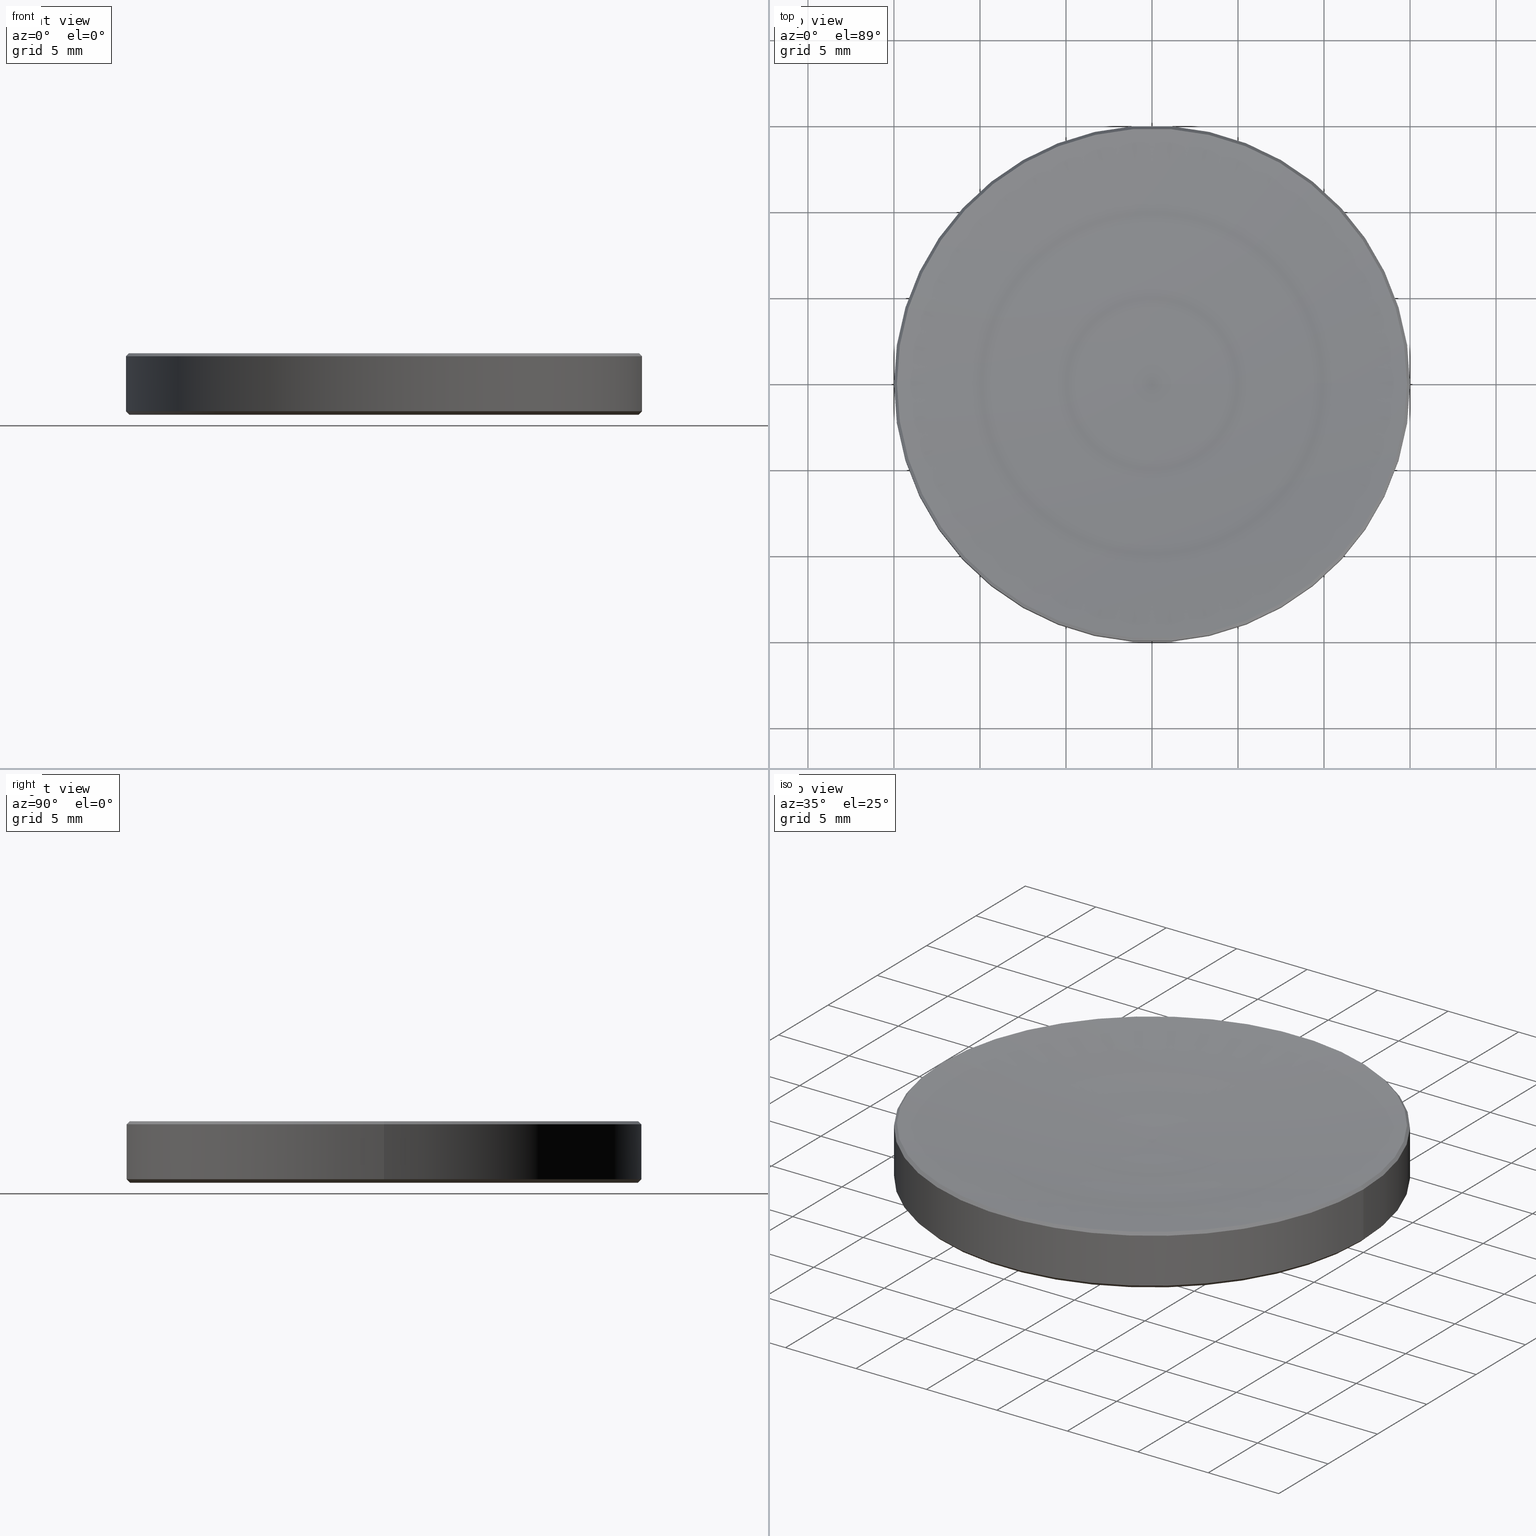
[diagram: canonical four-view strip — front | top / right | iso, engineering-drawing reading convention]
A machine part, canonical four-view strip (front | top / right | iso — engineering-drawing reading convention). The complete STEP part file that produces these views, byte-faithful:
ISO-10303-21;
HEADER;
FILE_DESCRIPTION (( 'STEP AP214' ),
    '1' );
FILE_NAME ('GL13-030-200.STEP',
    '2022-10-25T13:48:24',
    ( '' ),
    ( '' ),
    'SwSTEP 2.0',
    'SolidWorks 2022',
    '' );
FILE_SCHEMA (( 'AUTOMOTIVE_DESIGN' ));
ENDSEC;

DATA;
#1 = EDGE_LOOP ( 'NONE', ( #159, #261 ) ) ;
#2 = AXIS2_PLACEMENT_3D ( 'NONE', #102, #266, #223 ) ;
#3 = COLOUR_RGB ( '',1.000000000000000000, 1.000000000000000000, 1.000000000000000000 ) ;
#4 = ORIENTED_EDGE ( 'NONE', *, *, #248, .F. ) ;
#5 = ORIENTED_EDGE ( 'NONE', *, *, #38, .T. ) ;
#6 = VERTEX_POINT ( 'NONE', #118 ) ;
#7 = VECTOR ( 'NONE', #205, 1000.000000000000000 ) ;
#8 = DIRECTION ( 'NONE',  ( -0.000000000000000000, -0.000000000000000000, 1.000000000000000000 ) ) ;
#9 = CYLINDRICAL_SURFACE ( 'NONE', #42, 15.00000000000000000 ) ;
#10 = DIRECTION ( 'NONE',  ( -0.000000000000000000, -0.000000000000000000, 1.000000000000000000 ) ) ;
#11 = EDGE_CURVE ( 'NONE', #6, #137, #81, .T. ) ;
#12 = COLOUR_RGB ( '',1.000000000000000000, 1.000000000000000000, 1.000000000000000000 ) ;
#13 = LINE ( 'NONE', #170, #104 ) ;
#14 = DIRECTION ( 'NONE',  ( 0.000000000000000000, 0.000000000000000000, -1.000000000000000000 ) ) ;
#15 = CARTESIAN_POINT ( 'NONE',  ( 14.79999999999999893, 0.000000000000000000, 9.184850993605147944E-16 ) ) ;
#16 = AXIS2_PLACEMENT_3D ( 'NONE', #214, #234, #45 ) ;
#17 = FILL_AREA_STYLE_COLOUR ( '', #3 ) ;
#18 = MECHANICAL_DESIGN_GEOMETRIC_PRESENTATION_REPRESENTATION (  '', ( #154 ), #176 ) ;
#19 = EDGE_CURVE ( 'NONE', #21, #137, #95, .T. ) ;
#20 = CARTESIAN_POINT ( 'NONE',  ( 0.000000000000000000, 0.000000000000000000, 0.000000000000000000 ) ) ;
#21 = VERTEX_POINT ( 'NONE', #203 ) ;
#22 = ORIENTED_EDGE ( 'NONE', *, *, #232, .T. ) ;
#23 = FACE_OUTER_BOUND ( 'NONE', #180, .T. ) ;
#24 = FACE_OUTER_BOUND ( 'NONE', #1, .T. ) ;
#25 = CARTESIAN_POINT ( 'NONE',  ( -14.79999999999999893, 1.824723730729555837E-15, 9.184850993605147944E-16 ) ) ;
#26 = CARTESIAN_POINT ( 'NONE',  ( 0.000000000000000000, 0.000000000000000000, 0.1999999999999996503 ) ) ;
#27 = CARTESIAN_POINT ( 'NONE',  ( 0.000000000000000000, 0.000000000000000000, 2.500000000000000000 ) ) ;
#28 = CARTESIAN_POINT ( 'NONE',  ( 0.000000000000000000, 0.000000000000000000, 2.500000000000000000 ) ) ;
#29 = DIRECTION ( 'NONE',  ( 0.000000000000000000, 0.000000000000000000, -1.000000000000000000 ) ) ;
#30 = ADVANCED_FACE ( 'NONE', ( #24 ), #179, .F. ) ;
#31 = DIRECTION ( 'NONE',  ( 0.000000000000000000, 0.000000000000000000, -1.000000000000000000 ) ) ;
#32 = VECTOR ( 'NONE', #40, 1000.000000000000000 ) ;
#33 = AXIS2_PLACEMENT_3D ( 'NONE', #121, #210, #166 ) ;
#34 = CIRCLE ( 'NONE', #195, 103.2800000000000011 ) ;
#35 = DIRECTION ( 'NONE',  ( -0.000000000000000000, -0.000000000000000000, 1.000000000000000000 ) ) ;
#36 = CARTESIAN_POINT ( 'NONE',  ( -15.00000000000000000, 1.836970198721029589E-15, 3.399999999999972378 ) ) ;
#37 = PRESENTATION_LAYER_ASSIGNMENT (  '', '', ( #135 ) ) ;
#38 = EDGE_CURVE ( 'NONE', #113, #21, #175, .T. ) ;
#39 = EDGE_LOOP ( 'NONE', ( #79, #140, #161, #187 ) ) ;
#40 = DIRECTION ( 'NONE',  ( 0.7071067811864948371, 8.659560562354288211E-17, -0.7071067811866003083 ) ) ;
#41 = EDGE_LOOP ( 'NONE', ( #4, #5, #156, #142 ) ) ;
#42 = AXIS2_PLACEMENT_3D ( 'NONE', #28, #10, #257 ) ;
#43 = ORIENTED_EDGE ( 'NONE', *, *, #99, .F. ) ;
#44 = DIRECTION ( 'NONE',  ( 0.000000000000000000, 0.000000000000000000, -1.000000000000000000 ) ) ;
#45 = DIRECTION ( 'NONE',  ( -1.000000000000000000, 0.000000000000000000, 0.000000000000000000 ) ) ;
#46 = CIRCLE ( 'NONE', #2, 103.2800000000000011 ) ;
#47 = CIRCLE ( 'NONE', #126, 15.00000000000000000 ) ;
#48 = EDGE_CURVE ( 'NONE', #114, #224, #46, .T. ) ;
#49 = DIRECTION ( 'NONE',  ( 1.000000000000000000, 0.000000000000000000, 0.000000000000000000 ) ) ;
#50 = DIRECTION ( 'NONE',  ( -0.000000000000000000, -0.000000000000000000, 1.000000000000000000 ) ) ;
#51 = DIRECTION ( 'NONE',  ( -0.000000000000000000, -0.000000000000000000, 1.000000000000000000 ) ) ;
#52 = PRODUCT_DEFINITION_SHAPE ( 'NONE', 'NONE',  #86 ) ;
#53 = ADVANCED_FACE ( 'NONE', ( #23 ), #251, .F. ) ;
#54 =( NAMED_UNIT ( * ) PLANE_ANGLE_UNIT ( ) SI_UNIT ( $, .RADIAN. ) );
#55 = SURFACE_STYLE_FILL_AREA ( #76 ) ;
#56 = ORIENTED_EDGE ( 'NONE', *, *, #191, .T. ) ;
#57 = ORIENTED_EDGE ( 'NONE', *, *, #11, .T. ) ;
#58 = DIRECTION ( 'NONE',  ( -0.000000000000000000, -0.000000000000000000, 1.000000000000000000 ) ) ;
#59 = ORIENTED_EDGE ( 'NONE', *, *, #255, .F. ) ;
#60 = DIRECTION ( 'NONE',  ( 1.000000000000000000, 0.000000000000000000, 0.000000000000000000 ) ) ;
#61 = DIRECTION ( 'NONE',  ( 1.000000000000000000, 0.000000000000000000, 0.000000000000000000 ) ) ;
#62 = CARTESIAN_POINT ( 'NONE',  ( 0.000000000000000000, 0.000000000000000000, 9.184850993605147944E-16 ) ) ;
#63 = AXIS2_PLACEMENT_3D ( 'NONE', #235, #51, #125 ) ;
#64 = UNCERTAINTY_MEASURE_WITH_UNIT (LENGTH_MEASURE( 1.000000000000000082E-05 ), #127, 'distance_accuracy_value', 'NONE');
#65 = ORIENTED_EDGE ( 'NONE', *, *, #48, .F. ) ;
#66 = FACE_OUTER_BOUND ( 'NONE', #41, .T. ) ;
#67 = CARTESIAN_POINT ( 'NONE',  ( 0.000000000000000000, 0.000000000000000000, 3.574481109687874358 ) ) ;
#68 = CARTESIAN_POINT ( 'NONE',  ( -0.03353293412618457009, 0.000000000000000000, 105.7799945562659616 ) ) ;
#69 = DIRECTION ( 'NONE',  ( -1.000000000000000000, 0.000000000000000000, 0.000000000000000000 ) ) ;
#70 = CARTESIAN_POINT ( 'NONE',  ( 0.000000000000000000, 0.000000000000000000, 9.184850993605147944E-16 ) ) ;
#71 = PRODUCT_RELATED_PRODUCT_CATEGORY ( 'part', '', ( #89 ) ) ;
#72 = CONICAL_SURFACE ( 'NONE', #182, 14.82551889031212333, 0.7853981633973737830 ) ;
#73 =( LENGTH_UNIT ( ) NAMED_UNIT ( * ) SI_UNIT ( .MILLI., .METRE. ) );
#74 = EDGE_LOOP ( 'NONE', ( #178, #242, #206, #139 ) ) ;
#75 = CIRCLE ( 'NONE', #33, 15.00000000000000000 ) ;
#76 = FILL_AREA_STYLE ('',( #17 ) ) ;
#77 = SURFACE_STYLE_FILL_AREA ( #172 ) ;
#78 = ORIENTED_EDGE ( 'NONE', *, *, #197, .F. ) ;
#79 = ORIENTED_EDGE ( 'NONE', *, *, #217, .T. ) ;
#80 = ORIENTED_EDGE ( 'NONE', *, *, #99, .T. ) ;
#81 = LINE ( 'NONE', #163, #32 ) ;
#82 = AXIS2_PLACEMENT_3D ( 'NONE', #107, #143, #49 ) ;
#83 =( GEOMETRIC_REPRESENTATION_CONTEXT ( 3 ) GLOBAL_UNCERTAINTY_ASSIGNED_CONTEXT ( ( #169 ) ) GLOBAL_UNIT_ASSIGNED_CONTEXT ( ( #239, #131, #94 ) ) REPRESENTATION_CONTEXT ( 'NONE', 'WORKASPACE' ) );
#84 = CARTESIAN_POINT ( 'NONE',  ( -15.00000000000000000, 1.836970198721029589E-15, 0.1999999999999996503 ) ) ;
#85 = CARTESIAN_POINT ( 'NONE',  ( 0.000000000000000000, 0.000000000000000000, 2.500000000000000000 ) ) ;
#86 = PRODUCT_DEFINITION ( 'δ֪', '', #198, #165 ) ;
#87 = CARTESIAN_POINT ( 'NONE',  ( -14.82551889031213577, 1.815602425471937729E-15, 3.574481109687874358 ) ) ;
#88 = CARTESIAN_POINT ( 'NONE',  ( 0.000000000000000000, 0.000000000000000000, 9.184850993605147944E-16 ) ) ;
#89 = PRODUCT ( 'GL13-030-200', 'GL13-030-200', '', ( #225 ) ) ;
#90 = CARTESIAN_POINT ( 'NONE',  ( 0.000000000000000000, 0.000000000000000000, 3.574481109687874358 ) ) ;
#91 = AXIS2_PLACEMENT_3D ( 'NONE', #85, #119, #145 ) ;
#92 = AXIS2_PLACEMENT_3D ( 'NONE', #260, #265, #218 ) ;
#93 = SURFACE_STYLE_USAGE ( .BOTH. , #259 ) ;
#94 =( NAMED_UNIT ( * ) SI_UNIT ( $, .STERADIAN. ) SOLID_ANGLE_UNIT ( ) );
#95 = LINE ( 'NONE', #141, #162 ) ;
#96 = ORIENTED_EDGE ( 'NONE', *, *, #255, .T. ) ;
#97 = VECTOR ( 'NONE', #103, 1000.000000000000000 ) ;
#98 = DIRECTION ( 'NONE',  ( 0.000000000000000000, -0.000000000000000000, 1.000000000000000000 ) ) ;
#99 = EDGE_CURVE ( 'NONE', #224, #252, #227, .T. ) ;
#100 = VERTEX_POINT ( 'NONE', #25 ) ;
#101 = APPLICATION_PROTOCOL_DEFINITION ( 'draft international standard', 'automotive_design', 1998, #146 ) ;
#102 = CARTESIAN_POINT ( 'NONE',  ( 0.03353293412618457009, -4.106600044365098363E-18, 105.7799945562659616 ) ) ;
#103 = DIRECTION ( 'NONE',  ( 0.7071067811865505703, 0.000000000000000000, 0.7071067811865444641 ) ) ;
#104 = VECTOR ( 'NONE', #177, 1000.000000000000000 ) ;
#105 = UNCERTAINTY_MEASURE_WITH_UNIT (LENGTH_MEASURE( 1.000000000000000082E-05 ), #73, 'distance_accuracy_value', 'NONE');
#106 = EDGE_CURVE ( 'NONE', #250, #21, #171, .T. ) ;
#107 = CARTESIAN_POINT ( 'NONE',  ( 0.000000000000000000, 0.000000000000000000, 0.1999999999999996503 ) ) ;
#108 = FACE_OUTER_BOUND ( 'NONE', #263, .T. ) ;
#109 = DIRECTION ( 'NONE',  ( 0.000000000000000000, 0.000000000000000000, -1.000000000000000000 ) ) ;
#110 = ADVANCED_FACE ( 'NONE', ( #253 ), #168, .T. ) ;
#111 = DIRECTION ( 'NONE',  ( 1.000000000000000000, 0.000000000000000000, 0.000000000000000000 ) ) ;
#112 =( NAMED_UNIT ( * ) SI_UNIT ( $, .STERADIAN. ) SOLID_ANGLE_UNIT ( ) );
#113 = VERTEX_POINT ( 'NONE', #256 ) ;
#114 = VERTEX_POINT ( 'NONE', #27 ) ;
#115 = AXIS2_PLACEMENT_3D ( 'NONE', #62, #98, #229 ) ;
#116 = AXIS2_PLACEMENT_3D ( 'NONE', #88, #109, #193 ) ;
#117 = CARTESIAN_POINT ( 'NONE',  ( -14.82551889031212333, 0.000000000000000000, 3.574481109687874358 ) ) ;
#118 = CARTESIAN_POINT ( 'NONE',  ( 14.82551889031213577, 0.000000000000000000, 3.574481109687874358 ) ) ;
#119 = DIRECTION ( 'NONE',  ( -0.000000000000000000, -0.000000000000000000, 1.000000000000000000 ) ) ;
#120 = EDGE_CURVE ( 'NONE', #100, #250, #151, .T. ) ;
#121 = CARTESIAN_POINT ( 'NONE',  ( 0.000000000000000000, 0.000000000000000000, 3.399999999999972378 ) ) ;
#122 = TOROIDAL_SURFACE ( 'NONE', #209, -0.03353293412618457009, 103.2800000000000011 ) ;
#123 = FACE_OUTER_BOUND ( 'NONE', #173, .T. ) ;
#124 = DIRECTION ( 'NONE',  ( -0.7071067811865505703, 8.659560562354969836E-17, 0.7071067811865444641 ) ) ;
#125 = DIRECTION ( 'NONE',  ( 1.000000000000000000, 0.000000000000000000, 0.000000000000000000 ) ) ;
#126 = AXIS2_PLACEMENT_3D ( 'NONE', #233, #35, #211 ) ;
#127 =( LENGTH_UNIT ( ) NAMED_UNIT ( * ) SI_UNIT ( .MILLI., .METRE. ) );
#128 = APPLICATION_PROTOCOL_DEFINITION ( 'draft international standard', 'automotive_design', 1998, #213 ) ;
#129 = ADVANCED_FACE ( 'NONE', ( #149 ), #188, .T. ) ;
#130 =( NAMED_UNIT ( * ) SI_UNIT ( $, .STERADIAN. ) SOLID_ANGLE_UNIT ( ) );
#131 =( NAMED_UNIT ( * ) PLANE_ANGLE_UNIT ( ) SI_UNIT ( $, .RADIAN. ) );
#132 = ORIENTED_EDGE ( 'NONE', *, *, #11, .F. ) ;
#133 = EDGE_CURVE ( 'NONE', #252, #137, #240, .T. ) ;
#134 = AXIS2_PLACEMENT_3D ( 'NONE', #26, #58, #184 ) ;
#135 = STYLED_ITEM ( 'NONE', ( #153 ), #136 ) ;
#136 = ADVANCED_BREP_SHAPE_REPRESENTATION ( 'GL13-030-200', ( #258, #228 ), #200 ) ;
#137 = VERTEX_POINT ( 'NONE', #190 ) ;
#138 = EDGE_CURVE ( 'NONE', #100, #113, #254, .T. ) ;
#139 = ORIENTED_EDGE ( 'NONE', *, *, #38, .F. ) ;
#140 = ORIENTED_EDGE ( 'NONE', *, *, #248, .T. ) ;
#141 = CARTESIAN_POINT ( 'NONE',  ( 15.00000000000000000, 0.000000000000000000, 2.500000000000000000 ) ) ;
#142 = ORIENTED_EDGE ( 'NONE', *, *, #197, .T. ) ;
#143 = DIRECTION ( 'NONE',  ( -0.000000000000000000, -0.000000000000000000, 1.000000000000000000 ) ) ;
#144 = AXIS2_PLACEMENT_3D ( 'NONE', #160, #249, #60 ) ;
#145 = DIRECTION ( 'NONE',  ( 1.000000000000000000, 0.000000000000000000, 0.000000000000000000 ) ) ;
#146 = APPLICATION_CONTEXT ( 'automotive_design' ) ;
#147 = ADVANCED_FACE ( 'NONE', ( #123 ), #72, .T. ) ;
#148 = CARTESIAN_POINT ( 'NONE',  ( 0.000000000000000000, 0.000000000000000000, 105.7799945562659616 ) ) ;
#149 = FACE_OUTER_BOUND ( 'NONE', #241, .T. ) ;
#150 = DIRECTION ( 'NONE',  ( 1.000000000000000000, 0.000000000000000000, 0.000000000000000000 ) ) ;
#151 = CIRCLE ( 'NONE', #236, 14.79999999999999893 ) ;
#152 =( NAMED_UNIT ( * ) PLANE_ANGLE_UNIT ( ) SI_UNIT ( $, .RADIAN. ) );
#153 = PRESENTATION_STYLE_ASSIGNMENT (( #93 ) ) ;
#154 = STYLED_ITEM ( 'NONE', ( #237 ), #258 ) ;
#155 = SURFACE_STYLE_USAGE ( .BOTH. , #216 ) ;
#156 = ORIENTED_EDGE ( 'NONE', *, *, #19, .T. ) ;
#157 = ORIENTED_EDGE ( 'NONE', *, *, #133, .F. ) ;
#158 = AXIS2_PLACEMENT_3D ( 'NONE', #67, #29, #192 ) ;
#159 = ORIENTED_EDGE ( 'NONE', *, *, #243, .T. ) ;
#160 = CARTESIAN_POINT ( 'NONE',  ( 0.000000000000000000, 0.000000000000000000, 105.7799945562659616 ) ) ;
#161 = ORIENTED_EDGE ( 'NONE', *, *, #133, .T. ) ;
#162 = VECTOR ( 'NONE', #204, 1000.000000000000000 ) ;
#163 = CARTESIAN_POINT ( 'NONE',  ( 14.82551889031212333, 1.815602425471936151E-15, 3.574481109687874358 ) ) ;
#164 = FACE_OUTER_BOUND ( 'NONE', #39, .T. ) ;
#165 = PRODUCT_DEFINITION_CONTEXT ( 'detailed design', #146, 'design' ) ;
#166 = DIRECTION ( 'NONE',  ( -1.000000000000000000, 0.000000000000000000, 0.000000000000000000 ) ) ;
#167 = FACE_OUTER_BOUND ( 'NONE', #186, .T. ) ;
#168 = CONICAL_SURFACE ( 'NONE', #82, 15.00000000000000000, 0.7853981633974526089 ) ;
#169 = UNCERTAINTY_MEASURE_WITH_UNIT (LENGTH_MEASURE( 1.000000000000000082E-05 ), #239, 'distance_accuracy_value', 'NONE');
#170 = CARTESIAN_POINT ( 'NONE',  ( -15.00000000000000000, 1.836970198721029589E-15, 2.500000000000000000 ) ) ;
#171 = LINE ( 'NONE', #196, #97 ) ;
#172 = FILL_AREA_STYLE ('',( #238 ) ) ;
#173 = EDGE_LOOP ( 'NONE', ( #132, #59, #80, #78 ) ) ;
#174 = ADVANCED_FACE ( 'NONE', ( #66 ), #9, .T. ) ;
#175 = CIRCLE ( 'NONE', #134, 15.00000000000000000 ) ;
#176 =( GEOMETRIC_REPRESENTATION_CONTEXT ( 3 ) GLOBAL_UNCERTAINTY_ASSIGNED_CONTEXT ( ( #105 ) ) GLOBAL_UNIT_ASSIGNED_CONTEXT ( ( #73, #152, #130 ) ) REPRESENTATION_CONTEXT ( 'NONE', 'WORKASPACE' ) );
#177 = DIRECTION ( 'NONE',  ( -0.000000000000000000, -0.000000000000000000, 1.000000000000000000 ) ) ;
#178 = ORIENTED_EDGE ( 'NONE', *, *, #138, .F. ) ;
#179 = PLANE ( 'NONE',  #115 ) ;
#180 = EDGE_LOOP ( 'NONE', ( #65, #22, #56 ) ) ;
#181 = ADVANCED_FACE ( 'NONE', ( #164 ), #189, .T. ) ;
#182 = AXIS2_PLACEMENT_3D ( 'NONE', #90, #44, #69 ) ;
#183 = CIRCLE ( 'NONE', #92, 14.82551889031212333 ) ;
#184 = DIRECTION ( 'NONE',  ( 1.000000000000000000, 0.000000000000000000, 0.000000000000000000 ) ) ;
#185 = DIRECTION ( 'NONE',  ( 0.000000000000000000, 0.000000000000000000, 1.000000000000000000 ) ) ;
#186 = EDGE_LOOP ( 'NONE', ( #244, #221, #96 ) ) ;
#187 = ORIENTED_EDGE ( 'NONE', *, *, #19, .F. ) ;
#188 = CONICAL_SURFACE ( 'NONE', #63, 15.00000000000000000, 0.7853981633974526089 ) ;
#189 = CYLINDRICAL_SURFACE ( 'NONE', #91, 15.00000000000000000 ) ;
#190 = CARTESIAN_POINT ( 'NONE',  ( 15.00000000000000000, 0.000000000000000000, 3.399999999999972378 ) ) ;
#191 = EDGE_CURVE ( 'NONE', #6, #224, #194, .T. ) ;
#192 = DIRECTION ( 'NONE',  ( -1.000000000000000000, 0.000000000000000000, 0.000000000000000000 ) ) ;
#193 = DIRECTION ( 'NONE',  ( 1.000000000000000000, 0.000000000000000000, 0.000000000000000000 ) ) ;
#194 = CIRCLE ( 'NONE', #262, 14.82551889031212333 ) ;
#195 = AXIS2_PLACEMENT_3D ( 'NONE', #68, #212, #31 ) ;
#196 = CARTESIAN_POINT ( 'NONE',  ( 15.00000000000000000, 0.000000000000000000, 0.1999999999999996503 ) ) ;
#197 = EDGE_CURVE ( 'NONE', #137, #252, #75, .T. ) ;
#198 = PRODUCT_DEFINITION_FORMATION_WITH_SPECIFIED_SOURCE ( '�κ�', '', #89, .NOT_KNOWN. ) ;
#199 = ORIENTED_EDGE ( 'NONE', *, *, #138, .T. ) ;
#200 =( GEOMETRIC_REPRESENTATION_CONTEXT ( 3 ) GLOBAL_UNCERTAINTY_ASSIGNED_CONTEXT ( ( #64 ) ) GLOBAL_UNIT_ASSIGNED_CONTEXT ( ( #127, #54, #112 ) ) REPRESENTATION_CONTEXT ( 'NONE', 'WORKASPACE' ) );
#201 = SHAPE_DEFINITION_REPRESENTATION ( #52, #136 ) ;
#202 = ORIENTED_EDGE ( 'NONE', *, *, #191, .F. ) ;
#203 = CARTESIAN_POINT ( 'NONE',  ( 15.00000000000000000, 0.000000000000000000, 0.1999999999999996503 ) ) ;
#204 = DIRECTION ( 'NONE',  ( -0.000000000000000000, -0.000000000000000000, 1.000000000000000000 ) ) ;
#205 = DIRECTION ( 'NONE',  ( -0.7071067811864948371, 0.000000000000000000, -0.7071067811866003083 ) ) ;
#206 = ORIENTED_EDGE ( 'NONE', *, *, #106, .T. ) ;
#207 = CARTESIAN_POINT ( 'NONE',  ( 0.000000000000000000, 0.000000000000000000, 3.574481109687874358 ) ) ;
#208 = CONICAL_SURFACE ( 'NONE', #158, 14.82551889031212333, 0.7853981633973737830 ) ;
#209 = AXIS2_PLACEMENT_3D ( 'NONE', #148, #50, #111 ) ;
#210 = DIRECTION ( 'NONE',  ( 0.000000000000000000, 0.000000000000000000, -1.000000000000000000 ) ) ;
#211 = DIRECTION ( 'NONE',  ( 1.000000000000000000, 0.000000000000000000, 0.000000000000000000 ) ) ;
#212 = DIRECTION ( 'NONE',  ( 0.000000000000000000, -1.000000000000000000, 0.000000000000000000 ) ) ;
#213 = APPLICATION_CONTEXT ( 'automotive_design' ) ;
#214 = CARTESIAN_POINT ( 'NONE',  ( 0.000000000000000000, 0.000000000000000000, 3.399999999999972378 ) ) ;
#215 = ADVANCED_FACE ( 'NONE', ( #108 ), #208, .T. ) ;
#216 = SURFACE_SIDE_STYLE ('',( #77 ) ) ;
#217 = EDGE_CURVE ( 'NONE', #21, #113, #47, .T. ) ;
#218 = DIRECTION ( 'NONE',  ( 1.000000000000000000, 0.000000000000000000, 0.000000000000000000 ) ) ;
#219 = MECHANICAL_DESIGN_GEOMETRIC_PRESENTATION_REPRESENTATION (  '', ( #135 ), #83 ) ;
#220 = ORIENTED_EDGE ( 'NONE', *, *, #106, .F. ) ;
#221 = ORIENTED_EDGE ( 'NONE', *, *, #48, .T. ) ;
#222 = CIRCLE ( 'NONE', #116, 14.79999999999999893 ) ;
#223 = DIRECTION ( 'NONE',  ( -1.000000000000000000, 1.224646799147353207E-16, 0.000000000000000000 ) ) ;
#224 = VERTEX_POINT ( 'NONE', #87 ) ;
#225 = PRODUCT_CONTEXT ( 'NONE', #213, 'mechanical' ) ;
#226 = ADVANCED_FACE ( 'NONE', ( #167 ), #122, .F. ) ;
#227 = LINE ( 'NONE', #117, #7 ) ;
#228 = AXIS2_PLACEMENT_3D ( 'NONE', #20, #185, #61 ) ;
#229 = DIRECTION ( 'NONE',  ( 1.000000000000000000, 0.000000000000000000, 0.000000000000000000 ) ) ;
#230 = ORIENTED_EDGE ( 'NONE', *, *, #217, .F. ) ;
#231 = DIRECTION ( 'NONE',  ( 1.000000000000000000, 0.000000000000000000, 0.000000000000000000 ) ) ;
#232 = EDGE_CURVE ( 'NONE', #114, #6, #34, .T. ) ;
#233 = CARTESIAN_POINT ( 'NONE',  ( 0.000000000000000000, 0.000000000000000000, 0.1999999999999996503 ) ) ;
#234 = DIRECTION ( 'NONE',  ( 0.000000000000000000, 0.000000000000000000, -1.000000000000000000 ) ) ;
#235 = CARTESIAN_POINT ( 'NONE',  ( 0.000000000000000000, 0.000000000000000000, 0.1999999999999996503 ) ) ;
#236 = AXIS2_PLACEMENT_3D ( 'NONE', #70, #14, #150 ) ;
#237 = PRESENTATION_STYLE_ASSIGNMENT (( #155 ) ) ;
#238 = FILL_AREA_STYLE_COLOUR ( '', #12 ) ;
#239 =( LENGTH_UNIT ( ) NAMED_UNIT ( * ) SI_UNIT ( .MILLI., .METRE. ) );
#240 = CIRCLE ( 'NONE', #16, 15.00000000000000000 ) ;
#241 = EDGE_LOOP ( 'NONE', ( #247, #199, #230, #220 ) ) ;
#242 = ORIENTED_EDGE ( 'NONE', *, *, #243, .F. ) ;
#243 = EDGE_CURVE ( 'NONE', #250, #100, #222, .T. ) ;
#244 = ORIENTED_EDGE ( 'NONE', *, *, #232, .F. ) ;
#245 = CLOSED_SHELL ( 'NONE', ( #215, #129, #181, #226, #53, #174, #30, #110, #147 ) ) ;
#246 = VECTOR ( 'NONE', #124, 1000.000000000000000 ) ;
#247 = ORIENTED_EDGE ( 'NONE', *, *, #120, .F. ) ;
#248 = EDGE_CURVE ( 'NONE', #113, #252, #13, .T. ) ;
#249 = DIRECTION ( 'NONE',  ( -0.000000000000000000, -0.000000000000000000, 1.000000000000000000 ) ) ;
#250 = VERTEX_POINT ( 'NONE', #15 ) ;
#251 = TOROIDAL_SURFACE ( 'NONE', #144, -0.03353293412618457009, 103.2800000000000011 ) ;
#252 = VERTEX_POINT ( 'NONE', #36 ) ;
#253 = FACE_OUTER_BOUND ( 'NONE', #74, .T. ) ;
#254 = LINE ( 'NONE', #84, #246 ) ;
#255 = EDGE_CURVE ( 'NONE', #224, #6, #183, .T. ) ;
#256 = CARTESIAN_POINT ( 'NONE',  ( -15.00000000000000000, 1.836970198721029589E-15, 0.1999999999999996503 ) ) ;
#257 = DIRECTION ( 'NONE',  ( 1.000000000000000000, 0.000000000000000000, 0.000000000000000000 ) ) ;
#258 = MANIFOLD_SOLID_BREP ( '����2', #245 ) ;
#259 = SURFACE_SIDE_STYLE ('',( #55 ) ) ;
#260 = CARTESIAN_POINT ( 'NONE',  ( 0.000000000000000000, 0.000000000000000000, 3.574481109687874358 ) ) ;
#261 = ORIENTED_EDGE ( 'NONE', *, *, #120, .T. ) ;
#262 = AXIS2_PLACEMENT_3D ( 'NONE', #207, #8, #231 ) ;
#263 = EDGE_LOOP ( 'NONE', ( #202, #57, #157, #43 ) ) ;
#264 = PRESENTATION_LAYER_ASSIGNMENT (  '', '', ( #154 ) ) ;
#265 = DIRECTION ( 'NONE',  ( -0.000000000000000000, -0.000000000000000000, 1.000000000000000000 ) ) ;
#266 = DIRECTION ( 'NONE',  ( 1.224646799147353207E-16, 1.000000000000000000, 0.000000000000000000 ) ) ;
ENDSEC;
END-ISO-10303-21;
